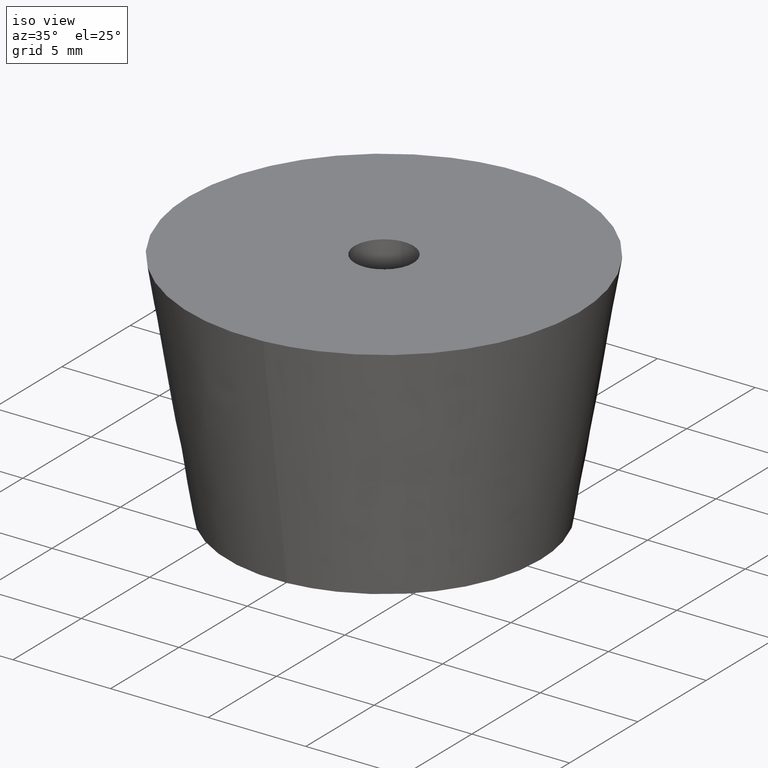
[diagram: clean part render]
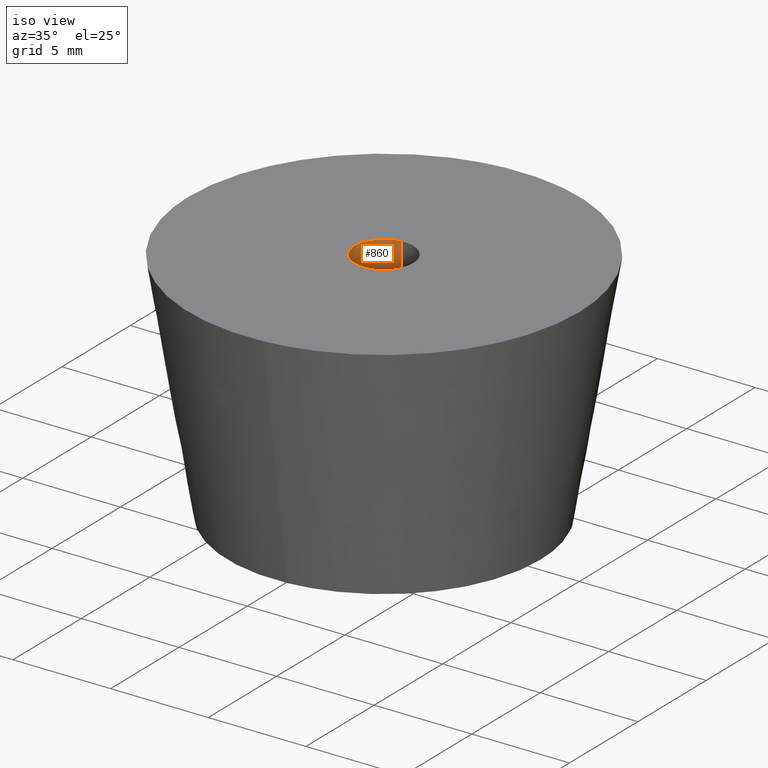
[diagram: same view with one face highlighted and labeled with its STEP entity id]
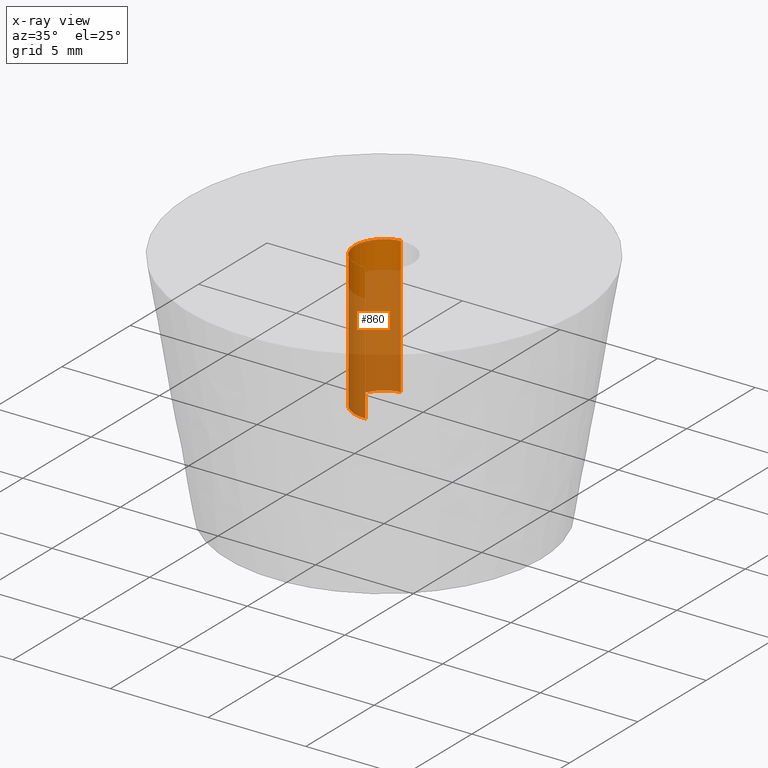
[diagram: x-ray of the same camera — body ghosted, the highlighted face saturated]
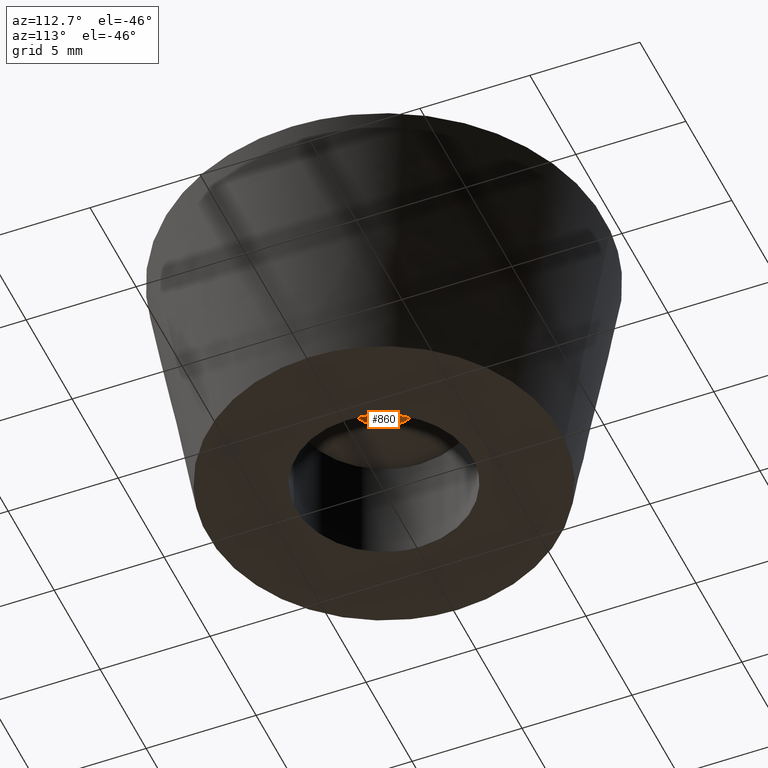
[diagram: same view with one face highlighted and labeled with its STEP entity id]
A machine part, iso view. The second image highlights one B-rep face of the part: STEP entity #860.
The next image is the same camera in x-ray: the body ghosted, the highlighted face saturated — about 77% of this face is hidden behind the body in this view.
A second angle (auxiliary view) of the same face is appended — the face is thin or edge-on in the first view.
In plain terms, the highlighted face is a freeform B-spline surface patch.
Its self-contained STEP definition (entity closure, byte-faithful):
#697=CARTESIAN_POINT('',(-0.177051352012515,1.489514289542246,12.0));
#698=VERTEX_POINT('',#697);
#716=CARTESIAN_POINT('',(-0.177051352012514,1.489514289542246,5.000000000000001));
#717=VERTEX_POINT('',#716);
#718=CARTESIAN_POINT('',(-0.177051352012515,1.489514289542246,12.0));
#719=CARTESIAN_POINT('',(-0.177051352012514,1.489514289542246,5.000000000000001));
#720=QUASI_UNIFORM_CURVE('',1,(#718,#719),.UNSPECIFIED.,.F.,.U.);
#721=EDGE_CURVE('',#698,#717,#720,.T.);
#740=CARTESIAN_POINT('',(0.091572809335385,-1.497202197630776,4.999999999999999));
#741=VERTEX_POINT('',#740);
#755=CARTESIAN_POINT('',(0.091572809335385,-1.497202197630776,12.0));
#756=VERTEX_POINT('',#755);
#757=CARTESIAN_POINT('',(0.091572809335385,-1.497202197630776,12.0));
#758=CARTESIAN_POINT('',(0.091572809335385,-1.497202197630776,4.999999999999999));
#759=QUASI_UNIFORM_CURVE('',1,(#757,#758),.UNSPECIFIED.,.F.,.U.);
#760=EDGE_CURVE('',#756,#741,#759,.T.);
#778=CARTESIAN_POINT('',(0.091572809302285,-1.497202197632800,12.175000000000001));
#779=CARTESIAN_POINT('',(-1.405629388330515,-1.588775006935085,12.175000000000001));
#780=CARTESIAN_POINT('',(-1.497202197632800,-0.091572809302285,12.175000000000001));
#781=CARTESIAN_POINT('',(-1.583679295098791,1.322315236259252,12.175000000000002));
#782=CARTESIAN_POINT('',(-0.177051351985138,1.489514289545500,12.175000000000002));
#783=CARTESIAN_POINT('',(0.091572809302285,-1.497202197632800,4.820624999999999));
#784=CARTESIAN_POINT('',(-1.405629388330515,-1.588775006935085,4.820624999999999));
#785=CARTESIAN_POINT('',(-1.497202197632800,-0.091572809302285,4.820624999999999));
#786=CARTESIAN_POINT('',(-1.583679295098791,1.322315236259252,4.820624999999999));
#787=CARTESIAN_POINT('',(-0.177051351985138,1.489514289545500,4.820625000000000));
#795=(BOUNDED_SURFACE()B_SPLINE_SURFACE(2,1,((#778,#783),(#779,#784),(#780,#785),(#781,#786),(#782,#787)),.UNSPECIFIED.,.F.,.F.,.U.)B_SPLINE_SURFACE_WITH_KNOTS((3,2,3),(2,2),(0.0,1.570796326794897,3.078760800517997),(0.0,7.354375000000004),.UNSPECIFIED.)GEOMETRIC_REPRESENTATION_ITEM()RATIONAL_B_SPLINE_SURFACE(((1.0,1.0),(0.707106781186548,0.707106781186548),(1.0,1.0),(0.718822509939086,0.718822509939086),(0.977505800795127,0.977505800795127)))REPRESENTATION_ITEM('')SURFACE());
#796=CARTESIAN_POINT('',(-1.500000000000000,0.0,12.0));
#797=VERTEX_POINT('',#796);
#798=CARTESIAN_POINT('',(-1.500000000000000,0.0,12.0));
#799=CARTESIAN_POINT('',(-1.500000000000000,1.332261788877733,12.0));
#800=CARTESIAN_POINT('',(-0.177051352012515,1.489514289542246,12.000000000000005));
#808=(BOUNDED_CURVE()B_SPLINE_CURVE(2,(#798,#799,#800),.UNSPECIFIED.,.F.,.U.)B_SPLINE_CURVE_WITH_KNOTS((3,3),(0.0,0.229562473509432),.UNSPECIFIED.)CURVE()GEOMETRIC_REPRESENTATION_ITEM()RATIONAL_B_SPLINE_CURVE((1.0,0.731050832860179,0.956026754175709))REPRESENTATION_ITEM(''));
#809=EDGE_CURVE('',#797,#698,#808,.T.);
#810=ORIENTED_EDGE('',*,*,#809,.F.);
#811=CARTESIAN_POINT('',(0.091572809335385,-1.497202197630776,11.999999999999996));
#812=CARTESIAN_POINT('',(0.045829144981075,-1.500000000000000,12.000000000000005));
#813=CARTESIAN_POINT('',(0.0,-1.500000000000000,12.0));
#814=CARTESIAN_POINT('',(-1.500000000000000,-1.500000000000000,12.0));
#815=CARTESIAN_POINT('',(-1.500000000000000,0.0,12.0));
#823=(BOUNDED_CURVE()B_SPLINE_CURVE(2,(#811,#812,#813,#814,#815),.UNSPECIFIED.,.F.,.U.)B_SPLINE_CURVE_WITH_KNOTS((3,2,3),(0.739332962234339,0.750000000000000,1.0),.UNSPECIFIED.)CURVE()GEOMETRIC_REPRESENTATION_ITEM()RATIONAL_B_SPLINE_CURVE((0.976072041656851,0.987502787894444,1.0,0.707106781186548,1.0))REPRESENTATION_ITEM(''));
#824=EDGE_CURVE('',#756,#797,#823,.T.);
#825=ORIENTED_EDGE('',*,*,#824,.F.);
#826=ORIENTED_EDGE('',*,*,#760,.T.);
#827=CARTESIAN_POINT('',(-1.500000000000000,0.0,5.0));
#828=VERTEX_POINT('',#827);
#829=CARTESIAN_POINT('',(0.091572809335385,-1.497202197630776,4.999999999999999));
#830=CARTESIAN_POINT('',(0.045829144981075,-1.500000000000000,5.0));
#831=CARTESIAN_POINT('',(0.0,-1.500000000000000,5.0));
#832=CARTESIAN_POINT('',(-1.500000000000000,-1.500000000000000,5.000000000000001));
#833=CARTESIAN_POINT('',(-1.500000000000000,0.0,5.0));
#841=(BOUNDED_CURVE()B_SPLINE_CURVE(2,(#829,#830,#831,#832,#833),.UNSPECIFIED.,.F.,.U.)B_SPLINE_CURVE_WITH_KNOTS((3,2,3),(0.739332962234339,0.750000000000000,1.0),.UNSPECIFIED.)CURVE()GEOMETRIC_REPRESENTATION_ITEM()RATIONAL_B_SPLINE_CURVE((0.976072041656851,0.987502787894444,1.0,0.707106781186548,1.0))REPRESENTATION_ITEM(''));
#842=EDGE_CURVE('',#741,#828,#841,.T.);
#843=ORIENTED_EDGE('',*,*,#842,.T.);
#844=CARTESIAN_POINT('',(-1.500000000000000,0.0,5.0));
#845=CARTESIAN_POINT('',(-1.500000000000001,1.332261788877735,4.999999999999999));
#846=CARTESIAN_POINT('',(-0.177051352012514,1.489514289542246,5.000000000000001));
#854=(BOUNDED_CURVE()B_SPLINE_CURVE(2,(#844,#845,#846),.UNSPECIFIED.,.F.,.U.)B_SPLINE_CURVE_WITH_KNOTS((3,3),(0.0,0.229562473509432),.UNSPECIFIED.)CURVE()GEOMETRIC_REPRESENTATION_ITEM()RATIONAL_B_SPLINE_CURVE((1.0,0.731050832860178,0.956026754175709))REPRESENTATION_ITEM(''));
#855=EDGE_CURVE('',#828,#717,#854,.T.);
#856=ORIENTED_EDGE('',*,*,#855,.T.);
#857=ORIENTED_EDGE('',*,*,#721,.F.);
#858=EDGE_LOOP('',(#810,#825,#826,#843,#856,#857));
#859=FACE_OUTER_BOUND('',#858,.T.);
#860=ADVANCED_FACE('',(#859),#795,.F.);